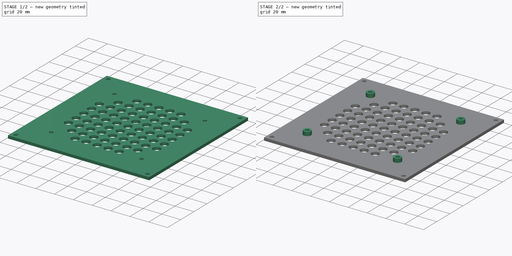
[diagram: build sequence overview — one tinted view per stage of 2, left to right]
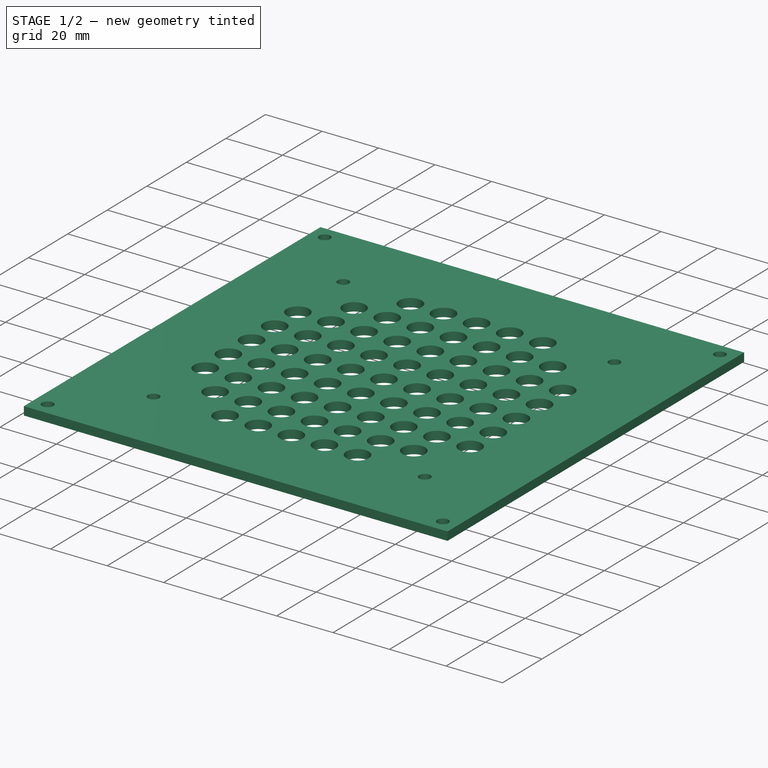
[diagram: stage 1 of 2 — iso view after this stage's code; geometry added in this stage tinted green]
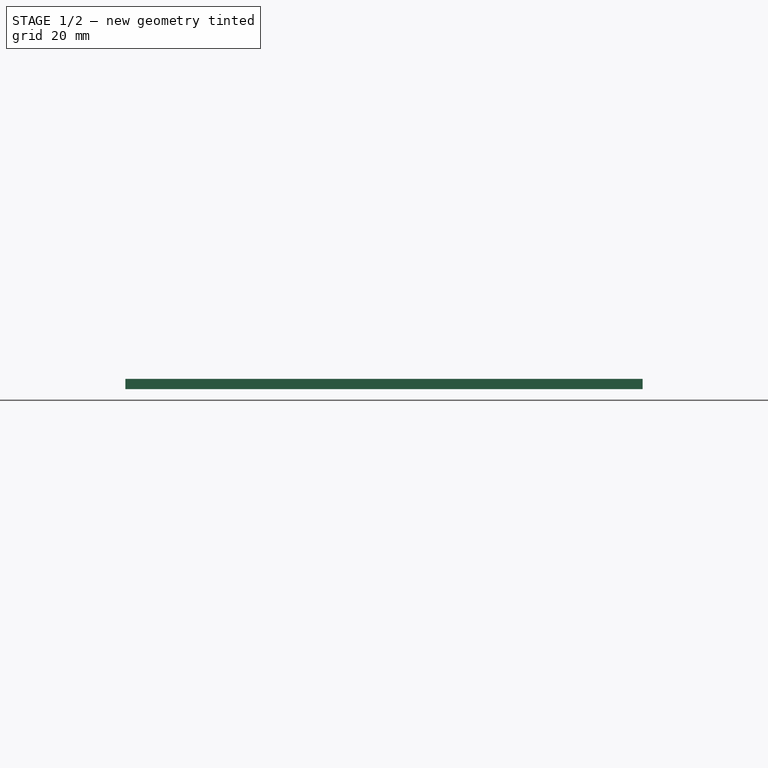
[diagram: stage 1 of 2 — front view after this stage's code; geometry added in this stage tinted green]
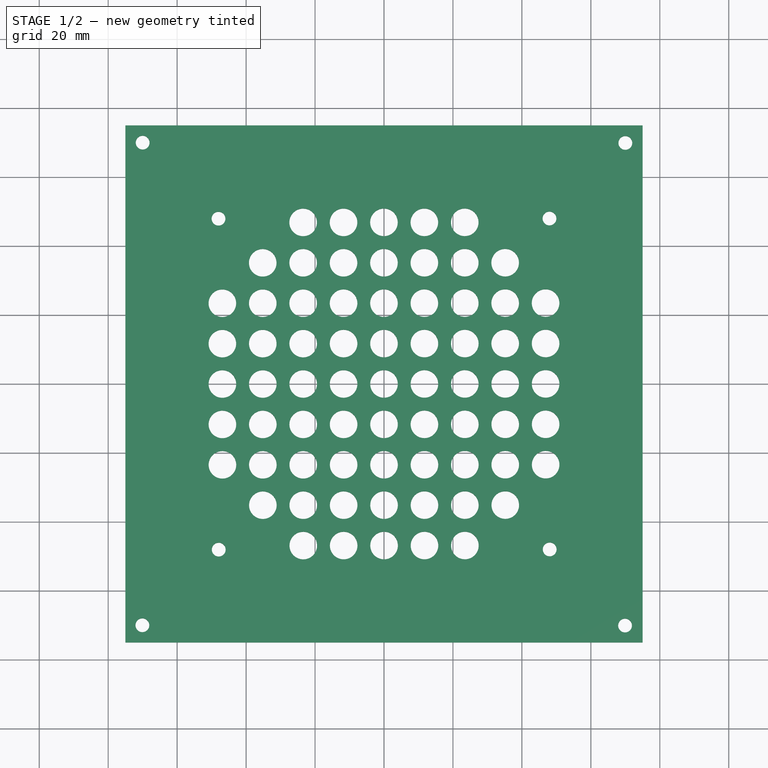
[diagram: stage 1 of 2 — top view after this stage's code; geometry added in this stage tinted green]
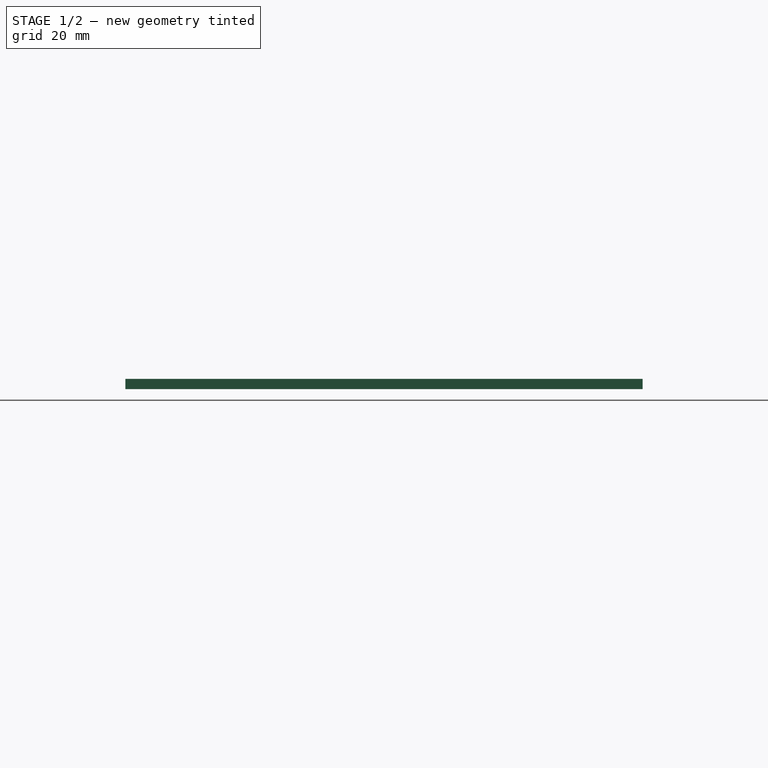
[diagram: stage 1 of 2 — right view after this stage's code; geometry added in this stage tinted green]
FCSTD DOCUMENT  (FreeCAD 0.21R29393 (Git))
Label: SpeakerFront
License: All rights reserved
LicenseURL: http://en.wikipedia.org/wiki/All_rights_reserved
objects: Sketcher::SketchObject×2, PartDesign::Pad×2, PartDesign::Plane×1, PartDesign::Body×1
note: 8 computed .brp shape members not serialized (recipe doc carries the construction recipe); baked Part::Feature solids carry a one-line shape summary decoded from their .brp

FEATURE [Sketcher::SketchObject] Sketch
  FullyConstrained = false
  MapMode = 5
  Support = -> [XY_Plane]
  sketch-geometry (167):
    g0: LineSegment StartX=-75 StartY=75 StartZ=0 EndX=75 EndY=75 EndZ=0
    g1: LineSegment StartX=75 StartY=75 StartZ=0 EndX=75 EndY=-75 EndZ=0
    g2: LineSegment StartX=75 StartY=-75 StartZ=0 EndX=-75 EndY=-75 EndZ=0
    g3: LineSegment StartX=-75 StartY=-75 StartZ=0 EndX=-75 EndY=75 EndZ=0
    g4: LineSegment StartX=-46.8958 StartY=46.8553 StartZ=0 EndX=-35.1766 EndY=46.8606 EndZ=0
    g5: Circle CenterX=-23.4575 CenterY=46.866 CenterZ=0 NormalX=0 NormalY=0 NormalZ=1 AngleXU=0 Radius=4
    g6: LineSegment StartX=-35.1766 StartY=46.8606 StartZ=0 EndX=-23.4575 EndY=46.866 EndZ=0
    g7: Circle CenterX=-11.7383 CenterY=46.8714 CenterZ=0 NormalX=0 NormalY=0 NormalZ=1 AngleXU=0 Radius=4
    g8: LineSegment StartX=-23.4575 StartY=46.866 StartZ=0 EndX=-11.7383 EndY=46.8714 EndZ=0
    g9: Circle CenterX=-0.0191094 CenterY=46.8767 CenterZ=0 NormalX=0 NormalY=0 NormalZ=1 AngleXU=0 Radius=4
    g10: LineSegment StartX=-11.7383 StartY=46.8714 StartZ=0 EndX=-0.0191094 EndY=46.8767 EndZ=0
    g11: Circle CenterX=11.7001 CenterY=46.8821 CenterZ=0 NormalX=0 NormalY=0 NormalZ=1 AngleXU=0 Radius=4
    g12: LineSegment StartX=-0.0191094 StartY=46.8767 StartZ=0 EndX=11.7001 EndY=46.8821 EndZ=0
    g13: Circle CenterX=23.4192 CenterY=46.8874 CenterZ=0 NormalX=0 NormalY=0 NormalZ=1 AngleXU=0 Radius=4
    g14: LineSegment StartX=11.7001 StartY=46.8821 StartZ=0 EndX=23.4192 EndY=46.8874 EndZ=0
    g15: LineSegment StartX=23.4192 StartY=46.8874 StartZ=0 EndX=35.1384 EndY=46.8928 EndZ=0
    g16: LineSegment StartX=35.1384 StartY=46.8928 StartZ=0 EndX=46.8576 EndY=46.8981 EndZ=0
    g17: LineSegment StartX=-46.8981 StartY=46.8553 StartZ=0 EndX=-46.8928 EndY=35.1361 EndZ=0
    g18: Circle CenterX=-35.1736 CenterY=35.1415 CenterZ=0 NormalX=0 NormalY=0 NormalZ=1 AngleXU=0 Radius=4
    g19: LineSegment StartX=-46.8928 StartY=35.1361 StartZ=0 EndX=-35.1736 EndY=35.1415 EndZ=0
    g20: Circle CenterX=-23.4544 CenterY=35.1468 CenterZ=0 NormalX=0 NormalY=0 NormalZ=1 AngleXU=0 Radius=4
    g21: LineSegment StartX=-35.1736 StartY=35.1415 StartZ=0 EndX=-23.4544 EndY=35.1468 EndZ=0
    g22: Circle CenterX=-11.7352 CenterY=35.1522 CenterZ=0 NormalX=0 NormalY=0 NormalZ=1 AngleXU=0 Radius=4
    g23: LineSegment StartX=-23.4544 StartY=35.1468 StartZ=0 EndX=-11.7352 EndY=35.1522 EndZ=0
    g24: Circle CenterX=-0.016068 CenterY=35.1575 CenterZ=0 NormalX=0 NormalY=0 NormalZ=1 AngleXU=0 Radius=4
    g25: LineSegment StartX=-11.7352 StartY=35.1522 StartZ=0 EndX=-0.016068 EndY=35.1575 EndZ=0
    g26: Circle CenterX=11.7031 CenterY=35.1629 CenterZ=0 NormalX=0 NormalY=0 NormalZ=1 AngleXU=0 Radius=4
    g27: LineSegment StartX=-0.016068 StartY=35.1575 StartZ=0 EndX=11.7031 EndY=35.1629 EndZ=0
    g28: Circle CenterX=23.4223 CenterY=35.1682 CenterZ=0 NormalX=0 NormalY=0 NormalZ=1 AngleXU=0 Radius=4
    g29: LineSegment StartX=11.7031 StartY=35.1629 StartZ=0 EndX=23.4223 EndY=35.1682 EndZ=0
    g30: Circle CenterX=35.1415 CenterY=35.1736 CenterZ=0 NormalX=0 NormalY=0 NormalZ=1 AngleXU=0 Radius=4
    g31: LineSegment StartX=23.4223 StartY=35.1682 StartZ=0 EndX=35.1415 EndY=35.1736 EndZ=0
    g32: LineSegment StartX=35.1415 StartY=35.1736 StartZ=0 EndX=46.8606 EndY=35.179 EndZ=0
    g33: Circle CenterX=-46.8874 CenterY=23.4169 CenterZ=0 NormalX=0 NormalY=0 NormalZ=1 AngleXU=0 Radius=4
    g34: LineSegment StartX=-46.8928 StartY=35.1361 StartZ=0 EndX=-46.8874 EndY=23.4169 EndZ=0
    g35: Circle CenterX=-35.1682 CenterY=23.4223 CenterZ=0 NormalX=0 NormalY=0 NormalZ=1 AngleXU=0 Radius=4
    g36: LineSegment StartX=-46.8874 StartY=23.4169 StartZ=0 EndX=-35.1682 EndY=23.4223 EndZ=0
    g37: Circle CenterX=-23.4491 CenterY=23.4276 CenterZ=0 NormalX=0 NormalY=0 NormalZ=1 AngleXU=0 Radius=4
    g38: LineSegment StartX=-35.1682 StartY=23.4223 StartZ=0 EndX=-23.4491 EndY=23.4276 EndZ=0
    g39: Circle CenterX=-11.7299 CenterY=23.433 CenterZ=0 NormalX=0 NormalY=0 NormalZ=1 AngleXU=0 Radius=4
    g40: LineSegment StartX=-23.4491 StartY=23.4276 StartZ=0 EndX=-11.7299 EndY=23.433 EndZ=0
    g41: Circle CenterX=-0.010712 CenterY=23.4384 CenterZ=0 NormalX=0 NormalY=0 NormalZ=1 AngleXU=0 Radius=4
    g42: LineSegment StartX=-11.7299 StartY=23.433 StartZ=0 EndX=-0.010712 EndY=23.4384 EndZ=0
    g43: Circle CenterX=11.7085 CenterY=23.4437 CenterZ=0 NormalX=0 NormalY=0 NormalZ=1 AngleXU=0 Radius=4
    g44: LineSegment StartX=-0.010712 StartY=23.4384 StartZ=0 EndX=11.7085 EndY=23.4437 EndZ=0
    g45: Circle CenterX=23.4276 CenterY=23.4491 CenterZ=0 NormalX=0 NormalY=0 NormalZ=1 AngleXU=0 Radius=4
    g46: LineSegment StartX=11.7085 StartY=23.4437 StartZ=0 EndX=23.4276 EndY=23.4491 EndZ=0
    g47: Circle CenterX=35.1468 CenterY=23.4544 CenterZ=0 NormalX=0 NormalY=0 NormalZ=1 AngleXU=0 Radius=4
    g48: LineSegment StartX=23.4276 StartY=23.4491 StartZ=0 EndX=35.1468 EndY=23.4544 EndZ=0
    g49: Circle CenterX=46.866 CenterY=23.4598 CenterZ=0 NormalX=0 NormalY=0 NormalZ=1 AngleXU=0 Radius=4
    g50: LineSegment StartX=35.1468 StartY=23.4544 StartZ=0 EndX=46.866 EndY=23.4598 EndZ=0
    g51: Circle CenterX=-46.8821 CenterY=11.6978 CenterZ=0 NormalX=0 NormalY=0 NormalZ=1 AngleXU=0 Radius=4
    g52: LineSegment StartX=-46.8874 StartY=23.4169 StartZ=0 EndX=-46.8821 EndY=11.6978 EndZ=0
    g53: Circle CenterX=-35.1629 CenterY=11.7031 CenterZ=0 NormalX=0 NormalY=0 NormalZ=1 AngleXU=0 Radius=4
    g54: LineSegment StartX=-46.8821 StartY=11.6978 StartZ=0 EndX=-35.1629 EndY=11.7031 EndZ=0
    g55: Circle CenterX=-23.4437 CenterY=11.7085 CenterZ=0 NormalX=0 NormalY=0 NormalZ=1 AngleXU=0 Radius=4
    g56: LineSegment StartX=-35.1629 StartY=11.7031 StartZ=0 EndX=-23.4437 EndY=11.7085 EndZ=0
    g57: Circle CenterX=-11.7245 CenterY=11.7138 CenterZ=0 NormalX=0 NormalY=0 NormalZ=1 AngleXU=0 Radius=4
    g58: LineSegment StartX=-23.4437 StartY=11.7085 StartZ=0 EndX=-11.7245 EndY=11.7138 EndZ=0
    g59: Circle CenterX=-0.005356 CenterY=11.7192 CenterZ=0 NormalX=0 NormalY=0 NormalZ=1 AngleXU=0 Radius=4
    g60: LineSegment StartX=-11.7245 StartY=11.7138 StartZ=0 EndX=-0.005356 EndY=11.7192 EndZ=0
    g61: Circle CenterX=11.7138 CenterY=11.7245 CenterZ=0 NormalX=0 NormalY=0 NormalZ=1 AngleXU=0 Radius=4
    g62: LineSegment StartX=-0.005356 StartY=11.7192 StartZ=0 EndX=11.7138 EndY=11.7245 EndZ=0
    g63: Circle CenterX=23.433 CenterY=11.7299 CenterZ=0 NormalX=0 NormalY=0 NormalZ=1 AngleXU=0 Radius=4
    g64: LineSegment StartX=11.7138 StartY=11.7245 StartZ=0 EndX=23.433 EndY=11.7299 EndZ=0
    g65: Circle CenterX=35.1522 CenterY=11.7352 CenterZ=0 NormalX=0 NormalY=0 NormalZ=1 AngleXU=0 Radius=4
    g66: LineSegment StartX=23.433 StartY=11.7299 StartZ=0 EndX=35.1522 EndY=11.7352 EndZ=0
    g67: Circle CenterX=46.8714 CenterY=11.7406 CenterZ=0 NormalX=0 NormalY=0 NormalZ=1 AngleXU=0 Radius=4
    g68: LineSegment StartX=35.1522 StartY=11.7352 StartZ=0 EndX=46.8714 EndY=11.7406 EndZ=0
    g69: Circle CenterX=-46.8767 CenterY=-0.021424 CenterZ=0 NormalX=0 NormalY=0 NormalZ=1 AngleXU=0 Radius=4
    g70: LineSegment StartX=-46.8821 StartY=11.6978 StartZ=0 EndX=-46.8767 EndY=-0.021424 EndZ=0
    g71: Circle CenterX=-35.1575 CenterY=-0.016068 CenterZ=0 NormalX=0 NormalY=0 NormalZ=1 AngleXU=0 Radius=4
    g72: LineSegment StartX=-46.8767 StartY=-0.021424 StartZ=0 EndX=-35.1575 EndY=-0.016068 EndZ=0
    g73: Circle CenterX=-23.4384 CenterY=-0.010712 CenterZ=0 NormalX=0 NormalY=0 NormalZ=1 AngleXU=0 Radius=4
    g74: LineSegment StartX=-35.1575 StartY=-0.016068 StartZ=0 EndX=-23.4384 EndY=-0.010712 EndZ=0
    g75: Circle CenterX=-11.7192 CenterY=-0.005356 CenterZ=0 NormalX=0 NormalY=0 NormalZ=1 AngleXU=0 Radius=4
    g76: LineSegment StartX=-23.4384 StartY=-0.010712 StartZ=0 EndX=-11.7192 EndY=-0.005356 EndZ=0
    g77: Circle CenterX=0 CenterY=0 CenterZ=0 NormalX=0 NormalY=0 NormalZ=1 AngleXU=0 Radius=4
    g78: LineSegment StartX=-11.7192 StartY=-0.005356 StartZ=0 EndX=0 EndY=0 EndZ=0
    g79: Circle CenterX=11.7192 CenterY=0.005356 CenterZ=0 NormalX=0 NormalY=0 NormalZ=1 AngleXU=0 Radius=4
    g80: LineSegment StartX=0 StartY=0 StartZ=0 EndX=11.7192 EndY=0.005356 EndZ=0
    g81: Circle CenterX=23.4384 CenterY=0.010712 CenterZ=0 NormalX=0 NormalY=0 NormalZ=1 AngleXU=0 Radius=4
    g82: LineSegment StartX=11.7192 StartY=0.005356 StartZ=0 EndX=23.4384 EndY=0.010712 EndZ=0
    g83: Circle CenterX=35.1575 CenterY=0.016068 CenterZ=0 NormalX=0 NormalY=0 NormalZ=1 AngleXU=0 Radius=4
    g84: LineSegment StartX=23.4384 StartY=0.010712 StartZ=0 EndX=35.1575 EndY=0.016068 EndZ=0
    g85: Circle CenterX=46.8767 CenterY=0.021424 CenterZ=0 NormalX=0 NormalY=0 NormalZ=1 AngleXU=0 Radius=4
    g86: LineSegment StartX=35.1575 StartY=0.016068 StartZ=0 EndX=46.8767 EndY=0.021424 EndZ=0
    g87: Circle CenterX=-46.8714 CenterY=-11.7406 CenterZ=0 NormalX=0 NormalY=0 NormalZ=1 AngleXU=0 Radius=4
    g88: LineSegment StartX=-46.8767 StartY=-0.021424 StartZ=0 EndX=-46.8714 EndY=-11.7406 EndZ=0
    g89: Circle CenterX=-35.1522 CenterY=-11.7352 CenterZ=0 NormalX=0 NormalY=0 NormalZ=1 AngleXU=0 Radius=4
    g90: LineSegment StartX=-46.8714 StartY=-11.7406 StartZ=0 EndX=-35.1522 EndY=-11.7352 EndZ=0
    g91: Circle CenterX=-23.433 CenterY=-11.7299 CenterZ=0 NormalX=0 NormalY=0 NormalZ=1 AngleXU=0 Radius=4
    g92: LineSegment StartX=-35.1522 StartY=-11.7352 StartZ=0 EndX=-23.433 EndY=-11.7299 EndZ=0
    g93: Circle CenterX=-11.7138 CenterY=-11.7245 CenterZ=0 NormalX=0 NormalY=0 NormalZ=1 AngleXU=0 Radius=4
    g94: LineSegment StartX=-23.433 StartY=-11.7299 StartZ=0 EndX=-11.7138 EndY=-11.7245 EndZ=0
    g95: Circle CenterX=0.005356 CenterY=-11.7192 CenterZ=0 NormalX=0 NormalY=0 NormalZ=1 AngleXU=0 Radius=4
    g96: LineSegment StartX=-11.7138 StartY=-11.7245 StartZ=0 EndX=0.005356 EndY=-11.7192 EndZ=0
    g97: Circle CenterX=11.7245 CenterY=-11.7138 CenterZ=0 NormalX=0 NormalY=0 NormalZ=1 AngleXU=0 Radius=4
    g98: LineSegment StartX=0.005356 StartY=-11.7192 StartZ=0 EndX=11.7245 EndY=-11.7138 EndZ=0
    g99: Circle CenterX=23.4437 CenterY=-11.7085 CenterZ=0 NormalX=0 NormalY=0 NormalZ=1 AngleXU=0 Radius=4
    g100: LineSegment StartX=11.7245 StartY=-11.7138 StartZ=0 EndX=23.4437 EndY=-11.7085 EndZ=0
    g101: Circle CenterX=35.1629 CenterY=-11.7031 CenterZ=0 NormalX=0 NormalY=0 NormalZ=1 AngleXU=0 Radius=4
    g102: LineSegment StartX=23.4437 StartY=-11.7085 StartZ=0 EndX=35.1629 EndY=-11.7031 EndZ=0
    g103: Circle CenterX=46.8821 CenterY=-11.6978 CenterZ=0 NormalX=0 NormalY=0 NormalZ=1 AngleXU=0 Radius=4
    g104: LineSegment StartX=35.1629 StartY=-11.7031 StartZ=0 EndX=46.8821 EndY=-11.6978 EndZ=0
    g105: Circle CenterX=-46.866 CenterY=-23.4598 CenterZ=0 NormalX=0 NormalY=0 NormalZ=1 AngleXU=0 Radius=4
    g106: LineSegment StartX=-46.8714 StartY=-11.7406 StartZ=0 EndX=-46.866 EndY=-23.4598 EndZ=0
    g107: Circle CenterX=-35.1468 CenterY=-23.4544 CenterZ=0 NormalX=0 NormalY=0 NormalZ=1 AngleXU=0 Radius=4
    g108: LineSegment StartX=-46.866 StartY=-23.4598 StartZ=0 EndX=-35.1468 EndY=-23.4544 EndZ=0
    g109: Circle CenterX=-23.4276 CenterY=-23.4491 CenterZ=0 NormalX=0 NormalY=0 NormalZ=1 AngleXU=0 Radius=4
    g110: LineSegment StartX=-35.1468 StartY=-23.4544 StartZ=0 EndX=-23.4276 EndY=-23.4491 EndZ=0
    g111: Circle CenterX=-11.7085 CenterY=-23.4437 CenterZ=0 NormalX=0 NormalY=0 NormalZ=1 AngleXU=0 Radius=4
    g112: LineSegment StartX=-23.4276 StartY=-23.4491 StartZ=0 EndX=-11.7085 EndY=-23.4437 EndZ=0
    g113: Circle CenterX=0.010712 CenterY=-23.4384 CenterZ=0 NormalX=0 NormalY=0 NormalZ=1 AngleXU=0 Radius=4
    g114: LineSegment StartX=-11.7085 StartY=-23.4437 StartZ=0 EndX=0.010712 EndY=-23.4384 EndZ=0
    g115: Circle CenterX=11.7299 CenterY=-23.433 CenterZ=0 NormalX=0 NormalY=0 NormalZ=1 AngleXU=0 Radius=4
    g116: LineSegment StartX=0.010712 StartY=-23.4384 StartZ=0 EndX=11.7299 EndY=-23.433 EndZ=0
    g117: Circle CenterX=23.4491 CenterY=-23.4276 CenterZ=0 NormalX=0 NormalY=0 NormalZ=1 AngleXU=0 Radius=4
    g118: LineSegment StartX=11.7299 StartY=-23.433 StartZ=0 EndX=23.4491 EndY=-23.4276 EndZ=0
    g119: Circle CenterX=35.1682 CenterY=-23.4223 CenterZ=0 NormalX=0 NormalY=0 NormalZ=1 AngleXU=0 Radius=4
    g120: LineSegment StartX=23.4491 StartY=-23.4276 StartZ=0 EndX=35.1682 EndY=-23.4223 EndZ=0
    g121: Circle CenterX=46.8874 CenterY=-23.4169 CenterZ=0 NormalX=0 NormalY=0 NormalZ=1 AngleXU=0 Radius=4
    g122: LineSegment StartX=35.1682 StartY=-23.4223 StartZ=0 EndX=46.8874 EndY=-23.4169 EndZ=0
    g123: LineSegment StartX=-46.866 StartY=-23.4598 StartZ=0 EndX=-46.8606 EndY=-35.179 EndZ=0
    g124: Circle CenterX=-35.1415 CenterY=-35.1736 CenterZ=0 NormalX=0 NormalY=0 NormalZ=1 AngleXU=0 Radius=4
    g125: LineSegment StartX=-46.8606 StartY=-35.179 StartZ=0 EndX=-35.1415 EndY=-35.1736 EndZ=0
    g126: Circle CenterX=-23.4223 CenterY=-35.1682 CenterZ=0 NormalX=0 NormalY=0 NormalZ=1 AngleXU=0 Radius=4
    g127: LineSegment StartX=-35.1415 StartY=-35.1736 StartZ=0 EndX=-23.4223 EndY=-35.1682 EndZ=0
    g128: Circle CenterX=-11.7031 CenterY=-35.1629 CenterZ=0 NormalX=0 NormalY=0 NormalZ=1 AngleXU=0 Radius=4
    g129: LineSegment StartX=-23.4223 StartY=-35.1682 StartZ=0 EndX=-11.7031 EndY=-35.1629 EndZ=0
    g130: Circle CenterX=0.016068 CenterY=-35.1575 CenterZ=0 NormalX=0 NormalY=0 NormalZ=1 AngleXU=0 Radius=4
    g131: LineSegment StartX=-11.7031 StartY=-35.1629 StartZ=0 EndX=0.016068 EndY=-35.1575 EndZ=0
    g132: Circle CenterX=11.7352 CenterY=-35.1522 CenterZ=0 NormalX=0 NormalY=0 NormalZ=1 AngleXU=0 Radius=4
    g133: LineSegment StartX=0.016068 StartY=-35.1575 StartZ=0 EndX=11.7352 EndY=-35.1522 EndZ=0
    g134: Circle CenterX=23.4544 CenterY=-35.1468 CenterZ=0 NormalX=0 NormalY=0 NormalZ=1 AngleXU=0 Radius=4
    g135: LineSegment StartX=11.7352 StartY=-35.1522 StartZ=0 EndX=23.4544 EndY=-35.1468 EndZ=0
    g136: Circle CenterX=35.1736 CenterY=-35.1415 CenterZ=0 NormalX=0 NormalY=0 NormalZ=1 AngleXU=0 Radius=4
    g137: LineSegment StartX=23.4544 StartY=-35.1468 StartZ=0 EndX=35.1736 EndY=-35.1415 EndZ=0
    g138: LineSegment StartX=35.1736 StartY=-35.1415 StartZ=0 EndX=46.8928 EndY=-35.1361 EndZ=0
    g139: LineSegment StartX=-46.8606 StartY=-35.179 StartZ=0 EndX=-46.8553 EndY=-46.8981 EndZ=0
    g140: LineSegment StartX=-46.8552 StartY=-46.8981 StartZ=0 EndX=-35.136 EndY=-46.8928 EndZ=0
    g141: Circle CenterX=-23.4169 CenterY=-46.8874 CenterZ=0 NormalX=0 NormalY=0 NormalZ=1 AngleXU=0 Radius=4
    g142: LineSegment StartX=-35.136 StartY=-46.8928 StartZ=0 EndX=-23.4169 EndY=-46.8874 EndZ=0
    g143: Circle CenterX=-11.6977 CenterY=-46.8821 CenterZ=0 NormalX=0 NormalY=0 NormalZ=1 AngleXU=0 Radius=4
    g144: LineSegment StartX=-23.4169 StartY=-46.8874 StartZ=0 EndX=-11.6977 EndY=-46.8821 EndZ=0
    g145: Circle CenterX=0.0214823 CenterY=-46.8767 CenterZ=0 NormalX=0 NormalY=0 NormalZ=1 AngleXU=0 Radius=4
    g146: LineSegment StartX=-11.6977 StartY=-46.8821 StartZ=0 EndX=0.0214823 EndY=-46.8767 EndZ=0
    g147: Circle CenterX=11.7407 CenterY=-46.8714 CenterZ=0 NormalX=0 NormalY=0 NormalZ=1 AngleXU=0 Radius=4
    g148: LineSegment StartX=0.0214823 StartY=-46.8767 StartZ=0 EndX=11.7407 EndY=-46.8714 EndZ=0
    g149: Circle CenterX=23.4598 CenterY=-46.866 CenterZ=0 NormalX=0 NormalY=0 NormalZ=1 AngleXU=0 Radius=4
    g150: LineSegment StartX=11.7407 StartY=-46.8714 StartZ=0 EndX=23.4598 EndY=-46.866 EndZ=0
    g151: LineSegment StartX=23.4598 StartY=-46.866 StartZ=0 EndX=35.179 EndY=-46.8606 EndZ=0
    g152: LineSegment StartX=35.179 StartY=-46.8606 StartZ=0 EndX=46.8982 EndY=-46.8553 EndZ=0
    g153: Circle CenterX=-48 CenterY=47.9411 CenterZ=0 NormalX=0 NormalY=0 NormalZ=1 AngleXU=0 Radius=2
    g154: Circle CenterX=48 CenterY=48 CenterZ=0 NormalX=0 NormalY=0 NormalZ=1 AngleXU=0 Radius=2
    g155: LineSegment StartX=-48 StartY=47.9411 StartZ=0 EndX=48 EndY=48 EndZ=0
    g156: Circle CenterX=-47.9411 CenterY=-48.0589 CenterZ=0 NormalX=0 NormalY=0 NormalZ=1 AngleXU=0 Radius=2
    g157: LineSegment StartX=-48 StartY=47.9411 StartZ=0 EndX=-47.9411 EndY=-48.0589 EndZ=0
    g158: Circle CenterX=48.0589 CenterY=-48 CenterZ=0 NormalX=0 NormalY=0 NormalZ=1 AngleXU=0 Radius=2
    g159: LineSegment StartX=-47.9411 StartY=-48.0589 StartZ=0 EndX=48.0589 EndY=-48 EndZ=0
    g160: Circle CenterX=-70 CenterY=70 CenterZ=0 NormalX=0 NormalY=0 NormalZ=1 AngleXU=0 Radius=2
    g161: Circle CenterX=70 CenterY=69.9154 CenterZ=0 NormalX=0 NormalY=0 NormalZ=1 AngleXU=0 Radius=2
    g162: LineSegment StartX=-70 StartY=70 StartZ=0 EndX=70 EndY=69.9154 EndZ=0
    g163: Circle CenterX=-70.0846 CenterY=-70 CenterZ=0 NormalX=0 NormalY=0 NormalZ=1 AngleXU=0 Radius=2
    g164: LineSegment StartX=-70 StartY=70 StartZ=0 EndX=-70.0846 EndY=-70 EndZ=0
    g165: Circle CenterX=69.9153 CenterY=-70.0846 CenterZ=0 NormalX=0 NormalY=0 NormalZ=1 AngleXU=0 Radius=2
    g166: LineSegment StartX=-70.0846 StartY=-70 StartZ=0 EndX=69.9153 EndY=-70.0846 EndZ=0
  constraints (415):
    c: Coincident(g0,g1)
    c: Coincident(g1,g2)
    c: Coincident(g2,g3)
    c: Coincident(g3,g0)
    c: Horizontal(g0)
    c: Horizontal(g2)
    c: Vertical(g1)
    c: Vertical(g3)
    c: Symmetric(g0,g1,g-1)
    c: Equal(g3,g0)
    c: DistanceX(g0,g0) = 150
    c: Distance(g4) = 11.7192
    c: Angle(g4) = 0.000457029
    c: Diameter(g5) = 8
    c: Coincident(g5,g6)
    c: Equal(g4,g6)
    c: Parallel(g6,g4)
    c: Diameter(g7) = 8
    c: Coincident(g5,g8)
    c: Coincident(g7,g8)
    c: Equal(g4,g8)
    c: Parallel(g8,g4)
    c: Diameter(g9) = 8
    c: Coincident(g7,g10)
    c: Coincident(g9,g10)
    c: Equal(g4,g10)
    c: Parallel(g10,g4)
    c: Diameter(g11) = 8
    c: Coincident(g9,g12)
    c: Coincident(g11,g12)
    c: Equal(g4,g12)
    c: Parallel(g12,g4)
    c: Diameter(g13) = 8
    c: Coincident(g11,g14)
    c: Coincident(g13,g14)
    c: Equal(g4,g14)
    c: Parallel(g14,g4)
    c: Coincident(g13,g15)
    c: Equal(g4,g15)
    c: Parallel(g15,g4)
    c: Equal(g4,g16)
    c: Parallel(g16,g4)
    c: Equal(g17,g4)
    c: Perpendicular(g17,g4)
    c: Diameter(g18) = 8
    c: Coincident(g18,g19)
    c: Equal(g4,g19)
    c: Parallel(g19,g4)
    c: Diameter(g20) = 8
    c: Coincident(g18,g21)
    c: Coincident(g20,g21)
    c: Equal(g4,g21)
    c: Parallel(g21,g4)
    c: Diameter(g22) = 8
    c: Coincident(g20,g23)
    c: Coincident(g22,g23)
    c: Equal(g4,g23)
    c: Parallel(g23,g4)
    c: Diameter(g24) = 8
    c: Coincident(g22,g25)
    c: Coincident(g24,g25)
    c: Equal(g4,g25)
    c: Parallel(g25,g4)
    c: Diameter(g26) = 8
    c: Coincident(g24,g27)
    c: Coincident(g26,g27)
    c: Equal(g4,g27)
    c: Parallel(g27,g4)
    c: Diameter(g28) = 8
    c: Coincident(g26,g29)
    c: Coincident(g28,g29)
    c: Equal(g4,g29)
    c: Parallel(g29,g4)
    c: Diameter(g30) = 8
    c: Coincident(g28,g31)
    c: Coincident(g30,g31)
    c: Equal(g4,g31)
    c: Parallel(g31,g4)
    c: Coincident(g30,g32)
    c: Equal(g4,g32)
    c: Parallel(g32,g4)
    c: Diameter(g33) = 8
    c: Coincident(g33,g34)
    c: Equal(g17,g34)
    c: Perpendicular(g34,g4)
    c: Diameter(g35) = 8
    c: Coincident(g33,g36)
    c: Coincident(g35,g36)
    c: Equal(g4,g36)
    c: Parallel(g36,g4)
    c: Diameter(g37) = 8
    c: Coincident(g35,g38)
    c: Coincident(g37,g38)
    c: Equal(g4,g38)
    c: Parallel(g38,g4)
    c: Diameter(g39) = 8
    c: Coincident(g37,g40)
    c: Coincident(g39,g40)
    c: Equal(g4,g40)
    c: Parallel(g40,g4)
    c: Diameter(g41) = 8
    c: Coincident(g39,g42)
    c: Coincident(g41,g42)
    c: Equal(g4,g42)
    c: Parallel(g42,g4)
    c: Diameter(g43) = 8
    c: Coincident(g41,g44)
    c: Coincident(g43,g44)
    c: Equal(g4,g44)
    c: Parallel(g44,g4)
    c: Diameter(g45) = 8
    c: Coincident(g43,g46)
    c: Coincident(g45,g46)
    c: Equal(g4,g46)
    c: Parallel(g46,g4)
    c: Diameter(g47) = 8
    c: Coincident(g45,g48)
    c: Coincident(g47,g48)
    c: Equal(g4,g48)
    c: Parallel(g48,g4)
    c: Diameter(g49) = 8
    c: Coincident(g47,g50)
    c: Coincident(g49,g50)
    c: Equal(g4,g50)
    c: Parallel(g50,g4)
    c: Diameter(g51) = 8
    c: Coincident(g33,g52)
    c: Coincident(g51,g52)
    c: Equal(g17,g52)
    c: Perpendicular(g52,g4)
    c: Diameter(g53) = 8
    c: Coincident(g51,g54)
    c: Coincident(g53,g54)
    c: Equal(g4,g54)
    c: Parallel(g54,g4)
    c: Diameter(g55) = 8
    c: Coincident(g53,g56)
    c: Coincident(g55,g56)
    c: Equal(g4,g56)
    c: Parallel(g56,g4)
    c: Diameter(g57) = 8
    c: Coincident(g55,g58)
    c: Coincident(g57,g58)
    c: Equal(g4,g58)
    c: Parallel(g58,g4)
    c: Diameter(g59) = 8
    c: Coincident(g57,g60)
    c: Coincident(g59,g60)
    c: Equal(g4,g60)
    c: Parallel(g60,g4)
    c: Diameter(g61) = 8
    c: Coincident(g59,g62)
    c: Coincident(g61,g62)
    c: Equal(g4,g62)
    c: Parallel(g62,g4)
    c: Diameter(g63) = 8
    c: Coincident(g61,g64)
    c: Coincident(g63,g64)
    c: Equal(g4,g64)
    c: Parallel(g64,g4)
    c: Diameter(g65) = 8
    c: Coincident(g63,g66)
    c: Coincident(g65,g66)
    c: Equal(g4,g66)
    c: Parallel(g66,g4)
    c: Diameter(g67) = 8
    c: Coincident(g65,g68)
    c: Coincident(g67,g68)
    c: Equal(g4,g68)
    c: Parallel(g68,g4)
    c: Diameter(g69) = 8
    c: Coincident(g51,g70)
    c: Coincident(g69,g70)
    c: Equal(g17,g70)
    c: Perpendicular(g70,g4)
    c: Diameter(g71) = 8
    c: Coincident(g69,g72)
    c: Coincident(g71,g72)
    c: Equal(g4,g72)
    c: Parallel(g72,g4)
    c: Diameter(g73) = 8
    c: Coincident(g71,g74)
    c: Coincident(g73,g74)
    c: Equal(g4,g74)
    c: Parallel(g74,g4)
    c: Diameter(g75) = 8
    c: Coincident(g73,g76)
    c: Coincident(g75,g76)
    c: Equal(g4,g76)
    c: Parallel(g76,g4)
    c: Diameter(g77) = 8
    c: Coincident(g75,g78)
    c: Coincident(g77,g78)
    c: Equal(g4,g78)
    c: Parallel(g78,g4)
    c: Diameter(g79) = 8
    c: Coincident(g77,g80)
    c: Coincident(g79,g80)
    c: Equal(g4,g80)
    c: Parallel(g80,g4)
    c: Diameter(g81) = 8
    c: Coincident(g79,g82)
    c: Coincident(g81,g82)
    c: Equal(g4,g82)
    c: Parallel(g82,g4)
    c: Diameter(g83) = 8
    c: Coincident(g81,g84)
    c: Coincident(g83,g84)
    c: Equal(g4,g84)
    c: Parallel(g84,g4)
    c: Diameter(g85) = 8
    c: Coincident(g83,g86)
    c: Coincident(g85,g86)
    c: Equal(g4,g86)
    c: Parallel(g86,g4)
    c: Diameter(g87) = 8
    c: Coincident(g69,g88)
    c: Coincident(g87,g88)
    c: Equal(g17,g88)
    c: Perpendicular(g88,g4)
    c: Diameter(g89) = 8
    c: Coincident(g87,g90)
    c: Coincident(g89,g90)
    c: Equal(g4,g90)
    c: Parallel(g90,g4)
    c: Diameter(g91) = 8
    c: Coincident(g89,g92)
    c: Coincident(g91,g92)
    c: Equal(g4,g92)
    c: Parallel(g92,g4)
    c: Diameter(g93) = 8
    c: Coincident(g91,g94)
    c: Coincident(g93,g94)
    c: Equal(g4,g94)
    c: Parallel(g94,g4)
    c: Diameter(g95) = 8
    c: Coincident(g93,g96)
    c: Coincident(g95,g96)
    c: Equal(g4,g96)
    c: Parallel(g96,g4)
    c: Diameter(g97) = 8
    c: Coincident(g95,g98)
    c: Coincident(g97,g98)
    c: Equal(g4,g98)
    c: Parallel(g98,g4)
    c: Diameter(g99) = 8
    c: Coincident(g97,g100)
    c: Coincident(g99,g100)
    c: Equal(g4,g100)
    c: Parallel(g100,g4)
    c: Diameter(g101) = 8
    c: Coincident(g99,g102)
    c: Coincident(g101,g102)
    c: Equal(g4,g102)
    c: Parallel(g102,g4)
    c: Diameter(g103) = 8
    c: Coincident(g101,g104)
    c: Coincident(g103,g104)
    c: Equal(g4,g104)
    c: Parallel(g104,g4)
    c: Diameter(g105) = 8
    c: Coincident(g87,g106)
    c: Coincident(g105,g106)
    c: Equal(g17,g106)
    c: Perpendicular(g106,g4)
    c: Diameter(g107) = 8
    c: Coincident(g105,g108)
    c: Coincident(g107,g108)
    c: Equal(g4,g108)
    c: Parallel(g108,g4)
    c: Diameter(g109) = 8
    c: Coincident(g107,g110)
    c: Coincident(g109,g110)
    c: Equal(g4,g110)
    c: Parallel(g110,g4)
    c: Diameter(g111) = 8
    c: Coincident(g109,g112)
    c: Coincident(g111,g112)
    c: Equal(g4,g112)
    c: Parallel(g112,g4)
    c: Diameter(g113) = 8
    c: Coincident(g111,g114)
    c: Coincident(g113,g114)
    c: Equal(g4,g114)
    c: Parallel(g114,g4)
    c: Diameter(g115) = 8
    c: Coincident(g113,g116)
    c: Coincident(g115,g116)
    c: Equal(g4,g116)
    c: Parallel(g116,g4)
    c: Diameter(g117) = 8
    c: Coincident(g115,g118)
    c: Coincident(g117,g118)
    c: Equal(g4,g118)
    c: Parallel(g118,g4)
    c: Diameter(g119) = 8
    c: Coincident(g117,g120)
    c: Coincident(g119,g120)
    c: Equal(g4,g120)
    c: Parallel(g120,g4)
    c: Diameter(g121) = 8
    c: Coincident(g119,g122)
    c: Coincident(g121,g122)
    c: Equal(g4,g122)
    c: Parallel(g122,g4)
    c: Coincident(g105,g123)
    c: Equal(g17,g123)
    c: Perpendicular(g123,g4)
    c: Diameter(g124) = 8
    c: Coincident(g124,g125)
    c: Equal(g4,g125)
    c: Parallel(g125,g4)
    c: Diameter(g126) = 8
    c: Coincident(g124,g127)
    c: Coincident(g126,g127)
    c: Equal(g4,g127)
    c: Parallel(g127,g4)
    c: Diameter(g128) = 8
    c: Coincident(g126,g129)
    c: Coincident(g128,g129)
    c: Equal(g4,g129)
    c: Parallel(g129,g4)
    c: Diameter(g130) = 8
    c: Coincident(g128,g131)
    c: Coincident(g130,g131)
    c: Equal(g4,g131)
    c: Parallel(g131,g4)
    c: Diameter(g132) = 8
    c: Coincident(g130,g133)
    c: Coincident(g132,g133)
    c: Equal(g4,g133)
    c: Parallel(g133,g4)
    c: Diameter(g134) = 8
    c: Coincident(g132,g135)
    c: Coincident(g134,g135)
    c: Equal(g4,g135)
    c: Parallel(g135,g4)
    c: Diameter(g136) = 8
    c: Coincident(g134,g137)
    c: Coincident(g136,g137)
    c: Equal(g4,g137)
    c: Parallel(g137,g4)
    c: Coincident(g136,g138)
    c: Equal(g4,g138)
    c: Parallel(g138,g4)
    c: Equal(g17,g139)
    c: Perpendicular(g139,g4)
    c: Equal(g4,g140)
    c: Parallel(g140,g4)
    c: Diameter(g141) = 8
    c: Coincident(g141,g142)
    c: Equal(g4,g142)
    c: Parallel(g142,g4)
    c: Diameter(g143) = 8
    c: Coincident(g141,g144)
    c: Coincident(g143,g144)
    c: Equal(g4,g144)
    c: Parallel(g144,g4)
    c: Diameter(g145) = 8
    c: Coincident(g143,g146)
    c: Coincident(g145,g146)
    c: Equal(g4,g146)
    c: Parallel(g146,g4)
    c: Diameter(g147) = 8
    c: Coincident(g145,g148)
    c: Coincident(g147,g148)
    c: Equal(g4,g148)
    c: Parallel(g148,g4)
    c: Diameter(g149) = 8
    c: Coincident(g147,g150)
    c: Coincident(g149,g150)
    c: Equal(g4,g150)
    c: Parallel(g150,g4)
    c: Coincident(g149,g151)
    c: Equal(g4,g151)
    c: Parallel(g151,g4)
    c: Equal(g4,g152)
    c: Parallel(g152,g4)
    c: Coincident(g77,g-1)
    c: Diameter(g153) = 4
    c: Diameter(g154) = 4
    c: Coincident(g153,g155)
    c: Coincident(g154,g155)
    c: Distance(g155) = 96
    c: Angle(g155) = 0.00061334
    c: Diameter(g156) = 4
    c: Coincident(g153,g157)
    c: Coincident(g156,g157)
    c: Equal(g157,g155)
    c: Perpendicular(g157,g155)
    c: Diameter(g158) = 4
    c: Coincident(g156,g159)
    c: Coincident(g158,g159)
    c: Equal(g155,g159)
    c: Parallel(g159,g155)
    c: DistanceX(g77,g154) = 48
    c: DistanceY(g77,g154) = 48
    c: DistanceX(g0,g160) = 5
    c: DistanceY(g160,g0) = 5
    c: Diameter(g160) = 4
    c: Diameter(g161) = 4
    c: Coincident(g160,g162)
    c: Coincident(g161,g162)
    c: Distance(g162) = 140
    c: Angle(g162) = -0.000604566
    c: Diameter(g163) = 4
    c: Coincident(g160,g164)
    c: Coincident(g163,g164)
    c: Equal(g164,g162)
    c: Perpendicular(g164,g162)
    c: Diameter(g165) = 4
    c: Coincident(g163,g166)
    c: Coincident(g165,g166)
    c: Equal(g162,g166)
    c: Parallel(g166,g162)
FEATURE [PartDesign::Pad] Pad
  Direction = (0,0,1)
  Length = 3
  Length2 = 10
  Profile = -> Sketch
  ReferenceAxis = -> Sketch [N_Axis]
  Type = 0
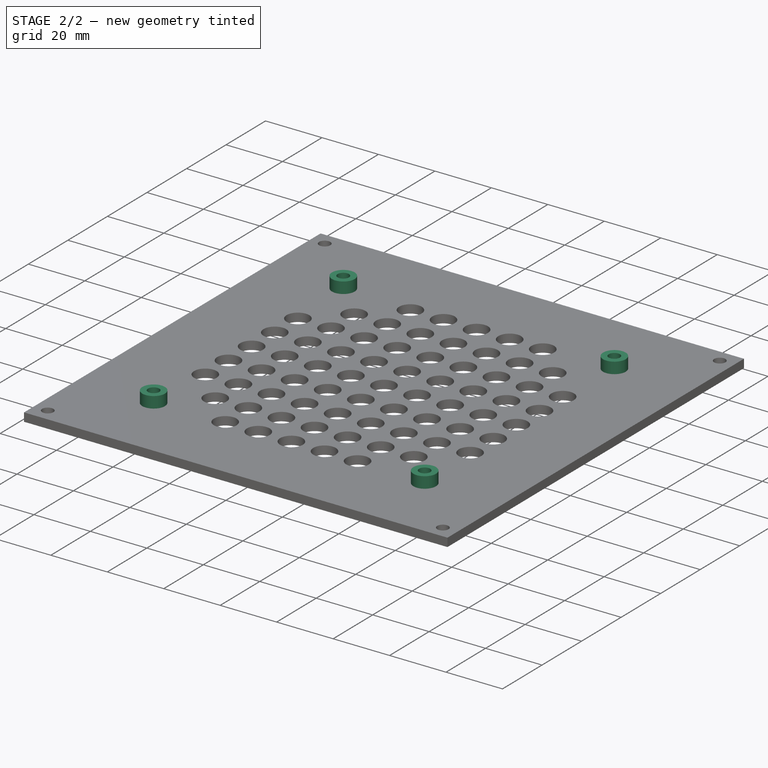
[diagram: stage 2 of 2 — iso view after this stage's code; geometry added in this stage tinted green]
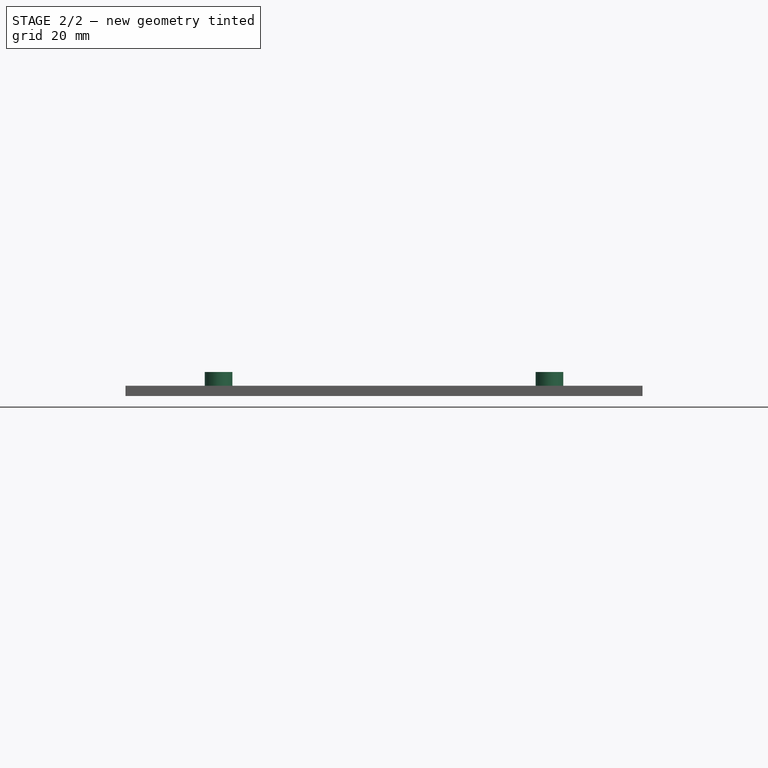
[diagram: stage 2 of 2 — front view after this stage's code; geometry added in this stage tinted green]
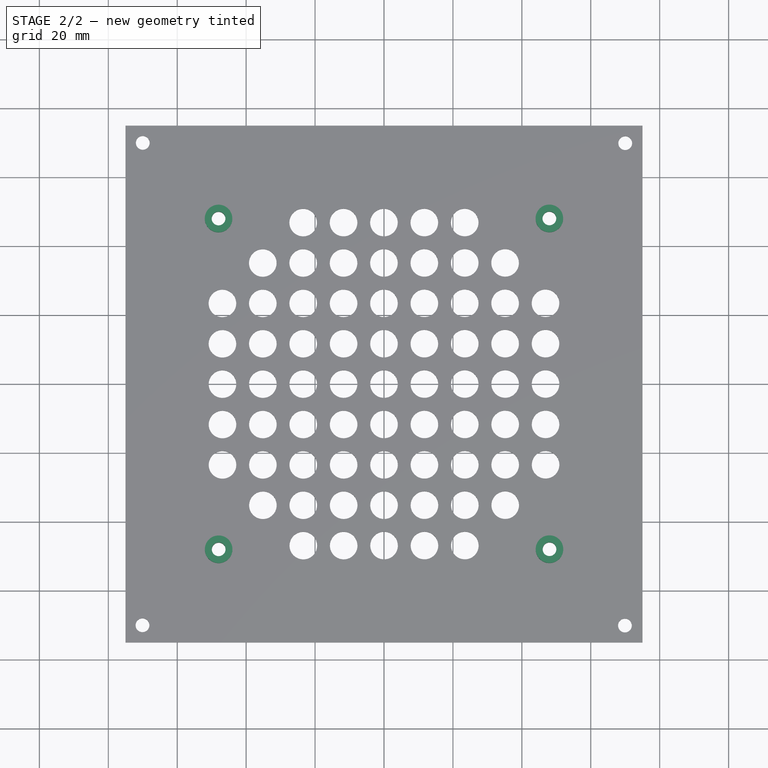
[diagram: stage 2 of 2 — top view after this stage's code; geometry added in this stage tinted green]
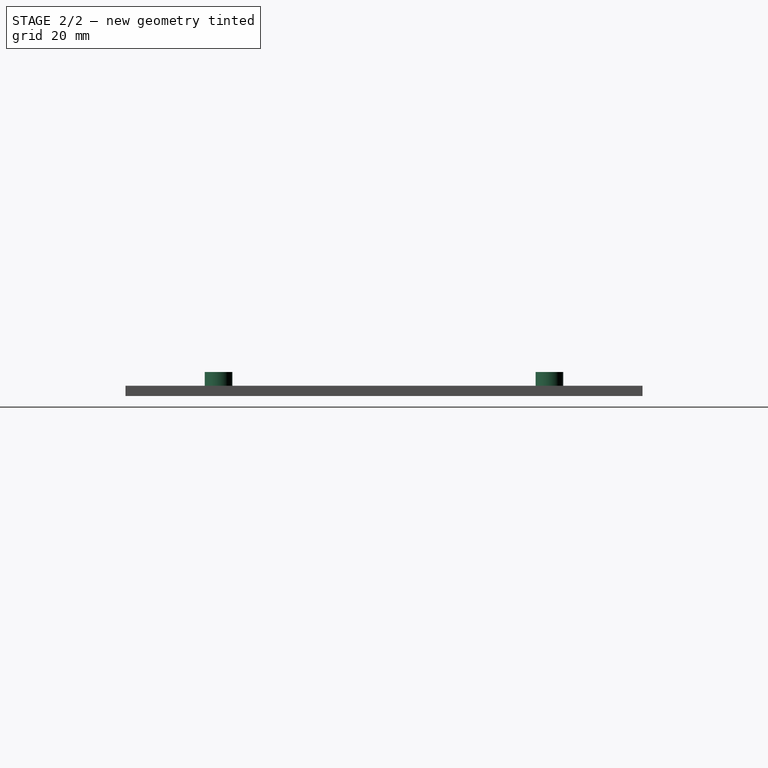
[diagram: stage 2 of 2 — right view after this stage's code; geometry added in this stage tinted green]
FEATURE [PartDesign::Plane] DatumPlane
  AttachmentOffset = pos=(0,0,3) rot=(0,0,1;0rad)
  Length = 180
  MapMode = 5
  Placement = pos=(0,0,3) rot=(0,0,1;0rad)
  ResizeMode = 0
  Support = -> [XY_Plane]
  Width = 180
FEATURE [Sketcher::SketchObject] Sketch001
  FullyConstrained = true
  MapMode = 5
  Placement = pos=(0,0,3) rot=(0,0,1;0rad)
  Support = -> [DatumPlane]
  sketch-geometry (11):
    g0: Circle CenterX=-48.0146 CenterY=47.9854 CenterZ=0 NormalX=0 NormalY=0 NormalZ=1 AngleXU=0 Radius=4
    g1: Circle CenterX=-48.0146 CenterY=47.9854 CenterZ=0 NormalX=0 NormalY=0 NormalZ=1 AngleXU=0 Radius=2
    g2: Circle CenterX=47.9854 CenterY=48.0146 CenterZ=0 NormalX=0 NormalY=0 NormalZ=1 AngleXU=0 Radius=4
    g3: Circle CenterX=47.9854 CenterY=48.0146 CenterZ=0 NormalX=0 NormalY=0 NormalZ=1 AngleXU=0 Radius=2
    g4: LineSegment StartX=-48.0146 StartY=47.9854 StartZ=0 EndX=47.9854 EndY=48.0146 EndZ=0
    g5: Circle CenterX=-47.9854 CenterY=-48.0146 CenterZ=0 NormalX=0 NormalY=0 NormalZ=1 AngleXU=0 Radius=4
    g6: Circle CenterX=-47.9854 CenterY=-48.0146 CenterZ=0 NormalX=0 NormalY=0 NormalZ=1 AngleXU=0 Radius=2
    g7: LineSegment StartX=-48.0146 StartY=47.9854 StartZ=0 EndX=-47.9854 EndY=-48.0146 EndZ=0
    g8: Circle CenterX=48.0146 CenterY=-47.9854 CenterZ=0 NormalX=0 NormalY=0 NormalZ=1 AngleXU=0 Radius=4
    g9: Circle CenterX=48.0146 CenterY=-47.9854 CenterZ=0 NormalX=0 NormalY=0 NormalZ=1 AngleXU=0 Radius=2
    g10: LineSegment StartX=-47.9854 StartY=-48.0146 StartZ=0 EndX=48.0146 EndY=-47.9854 EndZ=0
  constraints (25):
    c: Coincident(g1,g0)
    c: Coincident(g3,g2)
    c: Coincident(g0,g4)
    c: Coincident(g2,g4)
    c: Distance(g4) = 96
    c: Angle(g4) = 0.00030387
    c: Coincident(g6,g5)
    c: Coincident(g0,g7)
    c: Coincident(g5,g7)
    c: Equal(g7,g4)
    c: Perpendicular(g7,g4)
    c: Coincident(g9,g8)
    c: Coincident(g5,g10)
    c: Coincident(g8,g10)
    c: Equal(g4,g10)
    c: Parallel(g10,g4)
    c: Symmetric(g0,g8,g-1)
    c: Diameter(g0) = 8
    c: Diameter(g2) = 8
    c: Diameter(g8) = 8
    c: Diameter(g5) = 8
    c: Equal(g1,g3)
    c: Equal(g1,g9)
    c: Equal(g1,g6)
    c: Diameter(g1) = 4
FEATURE [PartDesign::Pad] Pad001
  BaseFeature = -> Pad
  Direction = (0,0,1)
  Length = 4
  Length2 = 10
  Profile = -> Sketch001
  ReferenceAxis = -> Sketch001 [N_Axis]
  Type = 0
FEATURE [PartDesign::Body] Body
  Group = -> [Sketch,Pad,DatumPlane,Sketch001,Pad001]
  Origin = -> Origin
  Tip = -> Pad001
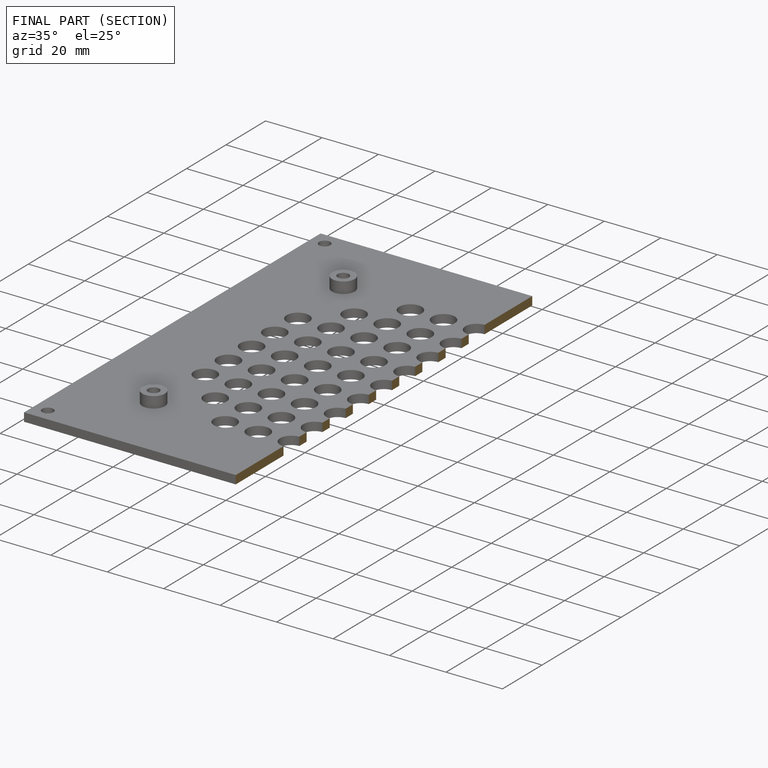
[diagram: finished part — half-section view (interior)]
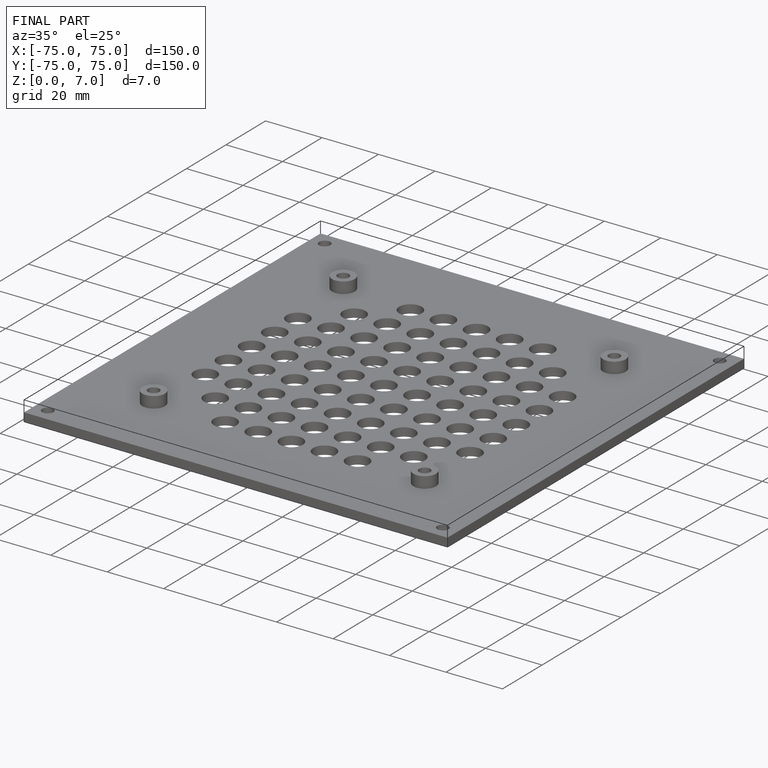
[diagram: finished part — iso view with bounding-box wireframe]
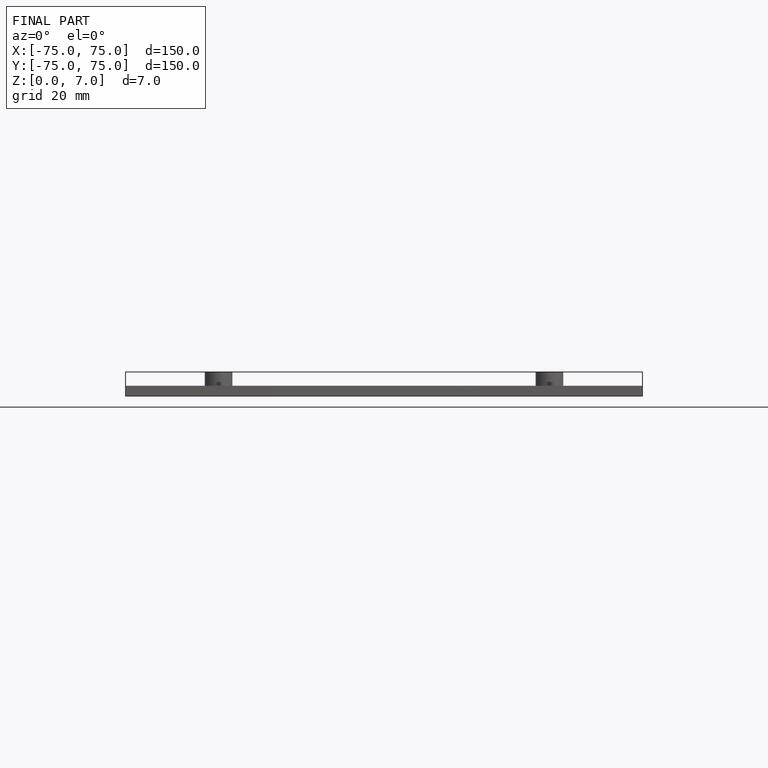
[diagram: finished part — front view with bounding-box wireframe]
